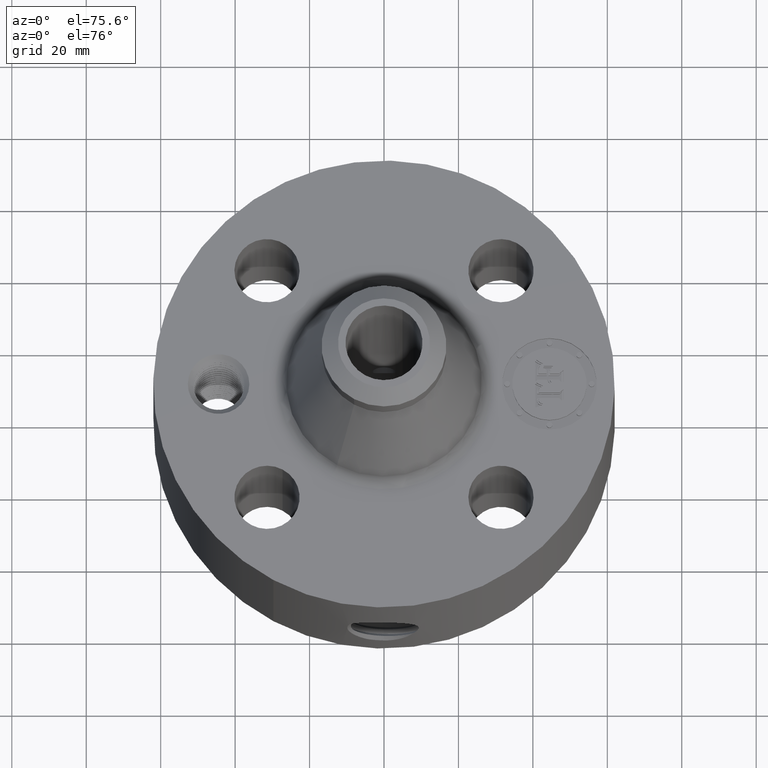
[diagram: clean part render]
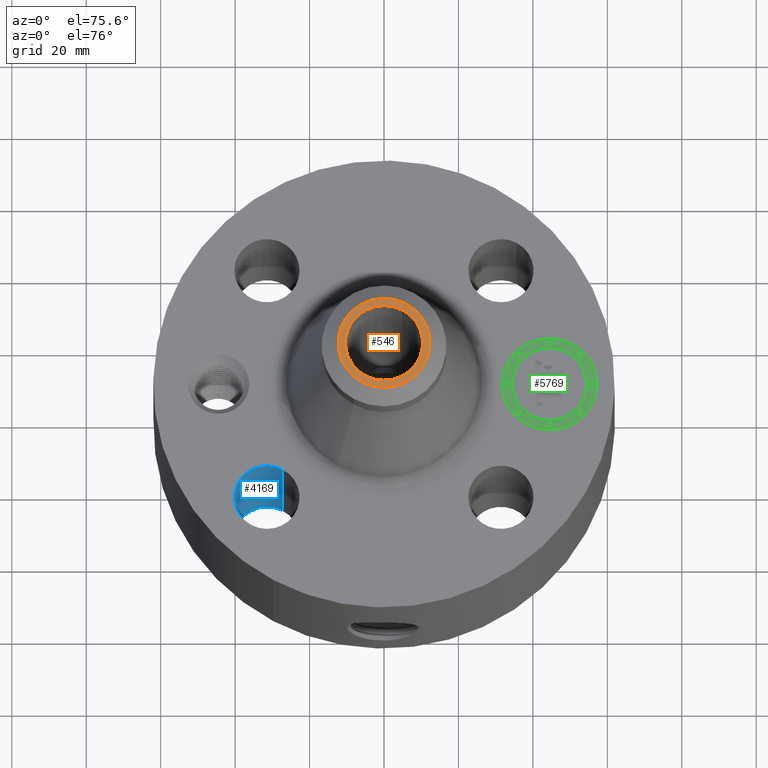
[diagram: same view with three faces highlighted in distinct colors, each labeled with its STEP entity id]
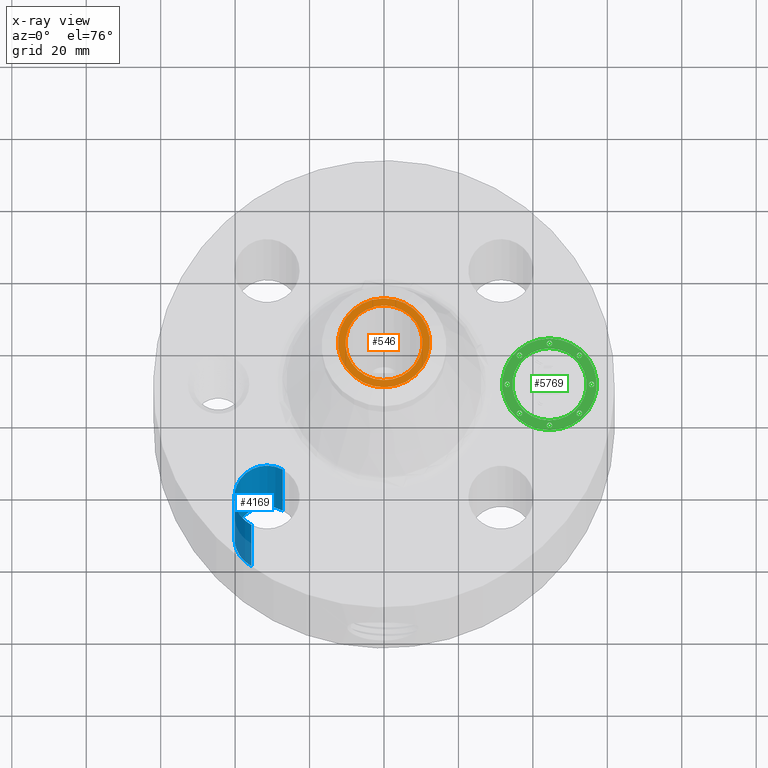
[diagram: x-ray of the same camera — body ghosted, the three highlighted faces saturated]
A machine part, auxiliary view with three faces highlighted in distinct colors.
The next image is the same camera in x-ray (body ghosted, the three faces saturated) — at least one of them is partly hidden behind the body in this view.
Their STEP definitions:

[orange] entity #546 — the highlighted planar face has unit normal (0, 0, -1).
#242=AXIS2_PLACEMENT_3D('Circle Axis2P3D',#240,#241,$) ;
#517=AXIS2_PLACEMENT_3D('Plane Axis2P3D',#514,#515,#516) ;
#521=AXIS2_PLACEMENT_3D('Circle Axis2P3D',#519,#520,$) ;
#530=AXIS2_PLACEMENT_3D('Circle Axis2P3D',#528,#529,$) ;
#539=AXIS2_PLACEMENT_3D('Circle Axis2P3D',#537,#538,$) ;
#240=CARTESIAN_POINT('Axis2P3D Location',(0.,0.,3.50000000001)) ;
#244=CARTESIAN_POINT('Vertex',(0.195365906982,0.357614893972,3.50000000001)) ;
#246=CARTESIAN_POINT('Vertex',(-0.195365906982,-0.357614893972,3.50000000001)) ;
#514=CARTESIAN_POINT('Axis2P3D Location',(0.,0.660000000003,3.50000000001)) ;
#519=CARTESIAN_POINT('Axis2P3D Location',(0.,0.,3.50000000001)) ;
#523=CARTESIAN_POINT('Vertex',(0.233115949392,-0.426715883097,3.50000000001)) ;
#525=CARTESIAN_POINT('Vertex',(-0.233115949392,0.426715883097,3.50000000001)) ;
#528=CARTESIAN_POINT('Axis2P3D Location',(0.,0.,3.50000000001)) ;
#537=CARTESIAN_POINT('Axis2P3D Location',(0.,0.,3.50000000001)) ;
#241=DIRECTION('Axis2P3D Direction',(0.,0.,-0.0393700787402)) ;
#515=DIRECTION('Axis2P3D Direction',(0.,0.,-0.0393700787402)) ;
#516=DIRECTION('Axis2P3D XDirection',(0.0393700787402,0.,0.)) ;
#520=DIRECTION('Axis2P3D Direction',(0.,0.,-0.0393700787402)) ;
#529=DIRECTION('Axis2P3D Direction',(0.,0.,-0.0393700787402)) ;
#538=DIRECTION('Axis2P3D Direction',(0.,0.,-0.0393700787402)) ;
#534=ORIENTED_EDGE('',*,*,#527,.T.) ;
#535=ORIENTED_EDGE('',*,*,#532,.T.) ;
#543=ORIENTED_EDGE('',*,*,#541,.T.) ;
#544=ORIENTED_EDGE('',*,*,#248,.T.) ;
#545=FACE_BOUND('',#542,.T.) ;
#546=ADVANCED_FACE('PartBody',(#536,#545),#518,.F.) ;
#243=CIRCLE('generated circle',#242,0.407500000002) ;
#522=CIRCLE('generated circle',#521,0.486240157482) ;
#531=CIRCLE('generated circle',#530,0.486240157482) ;
#540=CIRCLE('generated circle',#539,0.407500000002) ;
#248=EDGE_CURVE('',#245,#247,#243,.T.) ;
#527=EDGE_CURVE('',#524,#526,#522,.F.) ;
#532=EDGE_CURVE('',#526,#524,#531,.F.) ;
#541=EDGE_CURVE('',#247,#245,#540,.T.) ;
#533=EDGE_LOOP('',(#534,#535)) ;
#542=EDGE_LOOP('',(#543,#544)) ;
#536=FACE_OUTER_BOUND('',#533,.T.) ;
#518=PLANE('',#517) ;
#245=VERTEX_POINT('',#244) ;
#247=VERTEX_POINT('',#246) ;
#524=VERTEX_POINT('',#523) ;
#526=VERTEX_POINT('',#525) ;

[blue] entity #4169 — the highlighted cylindrical surface (edge-blend (fillet) strip) has radius 8.763 mm, axis along (0, -0, -1).
#2988=AXIS2_PLACEMENT_3D('Circle Axis2P3D',#2986,#2987,$) ;
#4130=AXIS2_PLACEMENT_3D('Cylinder Axis2P3D',#4127,#4128,#4129) ;
#4160=AXIS2_PLACEMENT_3D('Circle Axis2P3D',#4158,#4159,$) ;
#2986=CARTESIAN_POINT('Axis2P3D Location',(-1.23743686708,-1.23743686708,1.75000000001)) ;
#2990=CARTESIAN_POINT('Vertex',(-1.4028386779,-1.54020285093,1.75000000001)) ;
#2992=CARTESIAN_POINT('Vertex',(-1.07203505626,-0.934670883228,1.75000000001)) ;
#4127=CARTESIAN_POINT('Axis2P3D Location',(-1.23743686708,-1.23743686708,1.74606299213)) ;
#4132=CARTESIAN_POINT('Line Origine',(-1.07203505626,-0.934670883228,0.875000000003)) ;
#4136=CARTESIAN_POINT('Vertex',(-1.07203505626,-0.934670883228,0.)) ;
#4143=CARTESIAN_POINT('Vertex',(-1.4028386779,-1.54020285093,0.)) ;
#4146=CARTESIAN_POINT('Line Origine',(-1.4028386779,-1.54020285093,0.875000000003)) ;
#4158=CARTESIAN_POINT('Axis2P3D Location',(-1.23743686708,-1.23743686708,0.)) ;
#2987=DIRECTION('Axis2P3D Direction',(0.,0.,-0.0393700787402)) ;
#4128=DIRECTION('Axis2P3D Direction',(0.,-0.,-0.0393700787402)) ;
#4129=DIRECTION('Axis2P3D XDirection',(-0.0188750212049,-0.0345504945626,0.)) ;
#4133=DIRECTION('Vector Direction',(0.,0.,-0.0393700787402)) ;
#4147=DIRECTION('Vector Direction',(0.,0.,-0.0393700787402)) ;
#4159=DIRECTION('Axis2P3D Direction',(0.,-0.,-0.0393700787402)) ;
#4134=VECTOR('Line Direction',#4133,0.0393700787402) ;
#4148=VECTOR('Line Direction',#4147,0.0393700787402) ;
#4164=ORIENTED_EDGE('',*,*,#4150,.F.) ;
#4165=ORIENTED_EDGE('',*,*,#4162,.T.) ;
#4166=ORIENTED_EDGE('',*,*,#4138,.T.) ;
#4167=ORIENTED_EDGE('',*,*,#2994,.F.) ;
#4169=ADVANCED_FACE('PartBody',(#4168),#4131,.F.) ;
#2989=CIRCLE('generated circle',#2988,0.345000000001) ;
#4161=CIRCLE('generated circle',#4160,0.345000000001) ;
#4131=CYLINDRICAL_SURFACE('generated cylinder',#4130,0.345000000001) ;
#2994=EDGE_CURVE('',#2991,#2993,#2989,.T.) ;
#4138=EDGE_CURVE('',#4137,#2993,#4135,.F.) ;
#4150=EDGE_CURVE('',#4144,#2991,#4149,.F.) ;
#4162=EDGE_CURVE('',#4144,#4137,#4161,.T.) ;
#4163=EDGE_LOOP('',(#4164,#4165,#4166,#4167)) ;
#4168=FACE_OUTER_BOUND('',#4163,.T.) ;
#4135=LINE('Line',#4132,#4134) ;
#4149=LINE('Line',#4146,#4148) ;
#2991=VERTEX_POINT('',#2990) ;
#2993=VERTEX_POINT('',#2992) ;
#4137=VERTEX_POINT('',#4136) ;
#4144=VERTEX_POINT('',#4143) ;

[green] entity #5769 — the highlighted planar face has unit normal (0, 0, 1).
#4270=AXIS2_PLACEMENT_3D('Circle Axis2P3D',#4268,#4269,$) ;
#4297=AXIS2_PLACEMENT_3D('Circle Axis2P3D',#4295,#4296,$) ;
#5601=AXIS2_PLACEMENT_3D('Plane Axis2P3D',#5598,#5599,#5600) ;
#5609=AXIS2_PLACEMENT_3D('Circle Axis2P3D',#5607,#5608,$) ;
#5618=AXIS2_PLACEMENT_3D('Circle Axis2P3D',#5616,#5617,$) ;
#5627=AXIS2_PLACEMENT_3D('Circle Axis2P3D',#5625,#5626,$) ;
#5636=AXIS2_PLACEMENT_3D('Circle Axis2P3D',#5634,#5635,$) ;
#5645=AXIS2_PLACEMENT_3D('Circle Axis2P3D',#5643,#5644,$) ;
#5654=AXIS2_PLACEMENT_3D('Circle Axis2P3D',#5652,#5653,$) ;
#5663=AXIS2_PLACEMENT_3D('Circle Axis2P3D',#5661,#5662,$) ;
#5672=AXIS2_PLACEMENT_3D('Circle Axis2P3D',#5670,#5671,$) ;
#5681=AXIS2_PLACEMENT_3D('Circle Axis2P3D',#5679,#5680,$) ;
#5690=AXIS2_PLACEMENT_3D('Circle Axis2P3D',#5688,#5689,$) ;
#5699=AXIS2_PLACEMENT_3D('Circle Axis2P3D',#5697,#5698,$) ;
#5708=AXIS2_PLACEMENT_3D('Circle Axis2P3D',#5706,#5707,$) ;
#5717=AXIS2_PLACEMENT_3D('Circle Axis2P3D',#5715,#5716,$) ;
#5726=AXIS2_PLACEMENT_3D('Circle Axis2P3D',#5724,#5725,$) ;
#5735=AXIS2_PLACEMENT_3D('Circle Axis2P3D',#5733,#5734,$) ;
#5744=AXIS2_PLACEMENT_3D('Circle Axis2P3D',#5742,#5743,$) ;
#5753=AXIS2_PLACEMENT_3D('Circle Axis2P3D',#5751,#5752,$) ;
#5762=AXIS2_PLACEMENT_3D('Circle Axis2P3D',#5760,#5761,$) ;
#4265=CARTESIAN_POINT('Vertex',(1.75000000001,-0.499999995002,1.73500000001)) ;
#4268=CARTESIAN_POINT('Axis2P3D Location',(1.75000000001,-4.38103225949E-015,1.73500000001)) ;
#4272=CARTESIAN_POINT('Vertex',(1.75000000001,0.499999995002,1.73500000001)) ;
#4295=CARTESIAN_POINT('Axis2P3D Location',(1.75000000001,-4.38103225949E-015,1.73500000001)) ;
#5598=CARTESIAN_POINT('Axis2P3D Location',(0.,0.,1.73500000001)) ;
#5607=CARTESIAN_POINT('Axis2P3D Location',(1.75000000001,-4.38103225949E-015,1.73500000001)) ;
#5611=CARTESIAN_POINT('Vertex',(1.75000000001,-0.393939390002,1.73500000001)) ;
#5613=CARTESIAN_POINT('Vertex',(1.75000000001,0.393939390002,1.73500000001)) ;
#5616=CARTESIAN_POINT('Axis2P3D Location',(1.75000000001,-4.38103225949E-015,1.73500000001)) ;
#5625=CARTESIAN_POINT('Axis2P3D Location',(1.30303030751,-5.65258331292E-015,1.73500000001)) ;
#5629=CARTESIAN_POINT('Vertex',(1.30303030751,-0.0303030300001,1.73500000001)) ;
#5631=CARTESIAN_POINT('Vertex',(1.30303030751,0.0303030300001,1.73500000001)) ;
#5634=CARTESIAN_POINT('Axis2P3D Location',(1.30303030751,-5.65258331292E-015,1.73500000001)) ;
#5643=CARTESIAN_POINT('Axis2P3D Location',(1.75000000001,0.446969692502,1.73500000001)) ;
#5647=CARTESIAN_POINT('Vertex',(1.75000000001,0.416666662502,1.73500000001)) ;
#5649=CARTESIAN_POINT('Vertex',(1.75000000001,0.477272722502,1.73500000001)) ;
#5652=CARTESIAN_POINT('Axis2P3D Location',(1.75000000001,0.446969692502,1.73500000001)) ;
#5661=CARTESIAN_POINT('Axis2P3D Location',(1.43394469945,0.316055300553,1.73500000001)) ;
#5665=CARTESIAN_POINT('Vertex',(1.43394469945,0.285752270553,1.73500000001)) ;
#5667=CARTESIAN_POINT('Vertex',(1.43394469945,0.346358330553,1.73500000001)) ;
#5670=CARTESIAN_POINT('Axis2P3D Location',(1.43394469945,0.316055300553,1.73500000001)) ;
#5679=CARTESIAN_POINT('Axis2P3D Location',(2.19696969251,7.34549412211E-015,1.73500000001)) ;
#5683=CARTESIAN_POINT('Vertex',(2.19696969251,-0.0303030300001,1.73500000001)) ;
#5685=CARTESIAN_POINT('Vertex',(2.19696969251,0.0303030300001,1.73500000001)) ;
#5688=CARTESIAN_POINT('Axis2P3D Location',(2.19696969251,7.34549412211E-015,1.73500000001)) ;
#5697=CARTESIAN_POINT('Axis2P3D Location',(2.06605530056,0.316055300553,1.73500000001)) ;
#5701=CARTESIAN_POINT('Vertex',(2.06605530056,0.285752270553,1.73500000001)) ;
#5703=CARTESIAN_POINT('Vertex',(2.06605530056,0.346358330553,1.73500000001)) ;
#5706=CARTESIAN_POINT('Axis2P3D Location',(2.06605530056,0.316055300553,1.73500000001)) ;
#5715=CARTESIAN_POINT('Axis2P3D Location',(1.75000000001,-0.446969692502,1.73500000001)) ;
#5719=CARTESIAN_POINT('Vertex',(1.75000000001,-0.416666662502,1.73500000001)) ;
#5721=CARTESIAN_POINT('Vertex',(1.75000000001,-0.477272722502,1.73500000001)) ;
#5724=CARTESIAN_POINT('Axis2P3D Location',(1.75000000001,-0.446969692502,1.73500000001)) ;
#5733=CARTESIAN_POINT('Axis2P3D Location',(1.43394469945,-0.316055300553,1.73500000001)) ;
#5737=CARTESIAN_POINT('Vertex',(1.43394469945,-0.285752270553,1.73500000001)) ;
#5739=CARTESIAN_POINT('Vertex',(1.43394469945,-0.346358330553,1.73500000001)) ;
#5742=CARTESIAN_POINT('Axis2P3D Location',(1.43394469945,-0.316055300553,1.73500000001)) ;
#5751=CARTESIAN_POINT('Axis2P3D Location',(2.06605530056,-0.316055300553,1.73500000001)) ;
#5755=CARTESIAN_POINT('Vertex',(2.06605530056,-0.285752270553,1.73500000001)) ;
#5757=CARTESIAN_POINT('Vertex',(2.06605530056,-0.346358330553,1.73500000001)) ;
#5760=CARTESIAN_POINT('Axis2P3D Location',(2.06605530056,-0.316055300553,1.73500000001)) ;
#4269=DIRECTION('Axis2P3D Direction',(0.,0.,0.0393700787402)) ;
#4296=DIRECTION('Axis2P3D Direction',(0.,0.,0.0393700787402)) ;
#5599=DIRECTION('Axis2P3D Direction',(0.,0.,0.0393700787402)) ;
#5600=DIRECTION('Axis2P3D XDirection',(0.0393700787402,0.,0.)) ;
#5608=DIRECTION('Axis2P3D Direction',(0.,0.,0.0393700787402)) ;
#5617=DIRECTION('Axis2P3D Direction',(0.,0.,0.0393700787402)) ;
#5626=DIRECTION('Axis2P3D Direction',(0.,0.,0.0393700787402)) ;
#5635=DIRECTION('Axis2P3D Direction',(0.,0.,0.0393700787402)) ;
#5644=DIRECTION('Axis2P3D Direction',(0.,0.,0.0393700787402)) ;
#5653=DIRECTION('Axis2P3D Direction',(0.,0.,0.0393700787402)) ;
#5662=DIRECTION('Axis2P3D Direction',(0.,0.,0.0393700787402)) ;
#5671=DIRECTION('Axis2P3D Direction',(0.,0.,0.0393700787402)) ;
#5680=DIRECTION('Axis2P3D Direction',(0.,0.,0.0393700787402)) ;
#5689=DIRECTION('Axis2P3D Direction',(0.,0.,0.0393700787402)) ;
#5698=DIRECTION('Axis2P3D Direction',(0.,0.,0.0393700787402)) ;
#5707=DIRECTION('Axis2P3D Direction',(0.,0.,0.0393700787402)) ;
#5716=DIRECTION('Axis2P3D Direction',(0.,0.,0.0393700787402)) ;
#5725=DIRECTION('Axis2P3D Direction',(0.,0.,0.0393700787402)) ;
#5734=DIRECTION('Axis2P3D Direction',(0.,0.,0.0393700787402)) ;
#5743=DIRECTION('Axis2P3D Direction',(0.,0.,0.0393700787402)) ;
#5752=DIRECTION('Axis2P3D Direction',(0.,0.,0.0393700787402)) ;
#5761=DIRECTION('Axis2P3D Direction',(0.,0.,0.0393700787402)) ;
#5604=ORIENTED_EDGE('',*,*,#4274,.T.) ;
#5605=ORIENTED_EDGE('',*,*,#4299,.T.) ;
#5622=ORIENTED_EDGE('',*,*,#5615,.F.) ;
#5623=ORIENTED_EDGE('',*,*,#5620,.F.) ;
#5640=ORIENTED_EDGE('',*,*,#5633,.F.) ;
#5641=ORIENTED_EDGE('',*,*,#5638,.F.) ;
#5658=ORIENTED_EDGE('',*,*,#5651,.F.) ;
#5659=ORIENTED_EDGE('',*,*,#5656,.F.) ;
#5676=ORIENTED_EDGE('',*,*,#5669,.F.) ;
#5677=ORIENTED_EDGE('',*,*,#5674,.F.) ;
#5694=ORIENTED_EDGE('',*,*,#5687,.F.) ;
#5695=ORIENTED_EDGE('',*,*,#5692,.F.) ;
#5712=ORIENTED_EDGE('',*,*,#5705,.F.) ;
#5713=ORIENTED_EDGE('',*,*,#5710,.F.) ;
#5730=ORIENTED_EDGE('',*,*,#5723,.F.) ;
#5731=ORIENTED_EDGE('',*,*,#5728,.F.) ;
#5748=ORIENTED_EDGE('',*,*,#5741,.F.) ;
#5749=ORIENTED_EDGE('',*,*,#5746,.F.) ;
#5766=ORIENTED_EDGE('',*,*,#5759,.F.) ;
#5767=ORIENTED_EDGE('',*,*,#5764,.F.) ;
#5624=FACE_BOUND('',#5621,.T.) ;
#5642=FACE_BOUND('',#5639,.T.) ;
#5660=FACE_BOUND('',#5657,.T.) ;
#5678=FACE_BOUND('',#5675,.T.) ;
#5696=FACE_BOUND('',#5693,.T.) ;
#5714=FACE_BOUND('',#5711,.T.) ;
#5732=FACE_BOUND('',#5729,.T.) ;
#5750=FACE_BOUND('',#5747,.T.) ;
#5768=FACE_BOUND('',#5765,.T.) ;
#5769=ADVANCED_FACE('PartBody',(#5606,#5624,#5642,#5660,#5678,#5696,#5714,#5732,#5750,#5768),#5602,.T.) ;
#4271=CIRCLE('generated circle',#4270,0.499999995002) ;
#4298=CIRCLE('generated circle',#4297,0.499999995002) ;
#5610=CIRCLE('generated circle',#5609,0.393939390002) ;
#5619=CIRCLE('generated circle',#5618,0.393939390002) ;
#5628=CIRCLE('generated circle',#5627,0.0303030300001) ;
#5637=CIRCLE('generated circle',#5636,0.0303030300001) ;
#5646=CIRCLE('generated circle',#5645,0.0303030300001) ;
#5655=CIRCLE('generated circle',#5654,0.0303030300001) ;
#5664=CIRCLE('generated circle',#5663,0.0303030300001) ;
#5673=CIRCLE('generated circle',#5672,0.0303030300001) ;
#5682=CIRCLE('generated circle',#5681,0.0303030300001) ;
#5691=CIRCLE('generated circle',#5690,0.0303030300001) ;
#5700=CIRCLE('generated circle',#5699,0.0303030300001) ;
#5709=CIRCLE('generated circle',#5708,0.0303030300001) ;
#5718=CIRCLE('generated circle',#5717,0.0303030300001) ;
#5727=CIRCLE('generated circle',#5726,0.0303030300001) ;
#5736=CIRCLE('generated circle',#5735,0.0303030300001) ;
#5745=CIRCLE('generated circle',#5744,0.0303030300001) ;
#5754=CIRCLE('generated circle',#5753,0.0303030300001) ;
#5763=CIRCLE('generated circle',#5762,0.0303030300001) ;
#4274=EDGE_CURVE('',#4273,#4266,#4271,.T.) ;
#4299=EDGE_CURVE('',#4266,#4273,#4298,.T.) ;
#5615=EDGE_CURVE('',#5612,#5614,#5610,.T.) ;
#5620=EDGE_CURVE('',#5614,#5612,#5619,.T.) ;
#5633=EDGE_CURVE('',#5630,#5632,#5628,.T.) ;
#5638=EDGE_CURVE('',#5632,#5630,#5637,.T.) ;
#5651=EDGE_CURVE('',#5648,#5650,#5646,.T.) ;
#5656=EDGE_CURVE('',#5650,#5648,#5655,.T.) ;
#5669=EDGE_CURVE('',#5666,#5668,#5664,.T.) ;
#5674=EDGE_CURVE('',#5668,#5666,#5673,.T.) ;
#5687=EDGE_CURVE('',#5684,#5686,#5682,.T.) ;
#5692=EDGE_CURVE('',#5686,#5684,#5691,.T.) ;
#5705=EDGE_CURVE('',#5702,#5704,#5700,.T.) ;
#5710=EDGE_CURVE('',#5704,#5702,#5709,.T.) ;
#5723=EDGE_CURVE('',#5720,#5722,#5718,.T.) ;
#5728=EDGE_CURVE('',#5722,#5720,#5727,.T.) ;
#5741=EDGE_CURVE('',#5738,#5740,#5736,.T.) ;
#5746=EDGE_CURVE('',#5740,#5738,#5745,.T.) ;
#5759=EDGE_CURVE('',#5756,#5758,#5754,.T.) ;
#5764=EDGE_CURVE('',#5758,#5756,#5763,.T.) ;
#5603=EDGE_LOOP('',(#5604,#5605)) ;
#5621=EDGE_LOOP('',(#5622,#5623)) ;
#5639=EDGE_LOOP('',(#5640,#5641)) ;
#5657=EDGE_LOOP('',(#5658,#5659)) ;
#5675=EDGE_LOOP('',(#5676,#5677)) ;
#5693=EDGE_LOOP('',(#5694,#5695)) ;
#5711=EDGE_LOOP('',(#5712,#5713)) ;
#5729=EDGE_LOOP('',(#5730,#5731)) ;
#5747=EDGE_LOOP('',(#5748,#5749)) ;
#5765=EDGE_LOOP('',(#5766,#5767)) ;
#5606=FACE_OUTER_BOUND('',#5603,.T.) ;
#5602=PLANE('',#5601) ;
#4266=VERTEX_POINT('',#4265) ;
#4273=VERTEX_POINT('',#4272) ;
#5612=VERTEX_POINT('',#5611) ;
#5614=VERTEX_POINT('',#5613) ;
#5630=VERTEX_POINT('',#5629) ;
#5632=VERTEX_POINT('',#5631) ;
#5648=VERTEX_POINT('',#5647) ;
#5650=VERTEX_POINT('',#5649) ;
#5666=VERTEX_POINT('',#5665) ;
#5668=VERTEX_POINT('',#5667) ;
#5684=VERTEX_POINT('',#5683) ;
#5686=VERTEX_POINT('',#5685) ;
#5702=VERTEX_POINT('',#5701) ;
#5704=VERTEX_POINT('',#5703) ;
#5720=VERTEX_POINT('',#5719) ;
#5722=VERTEX_POINT('',#5721) ;
#5738=VERTEX_POINT('',#5737) ;
#5740=VERTEX_POINT('',#5739) ;
#5756=VERTEX_POINT('',#5755) ;
#5758=VERTEX_POINT('',#5757) ;